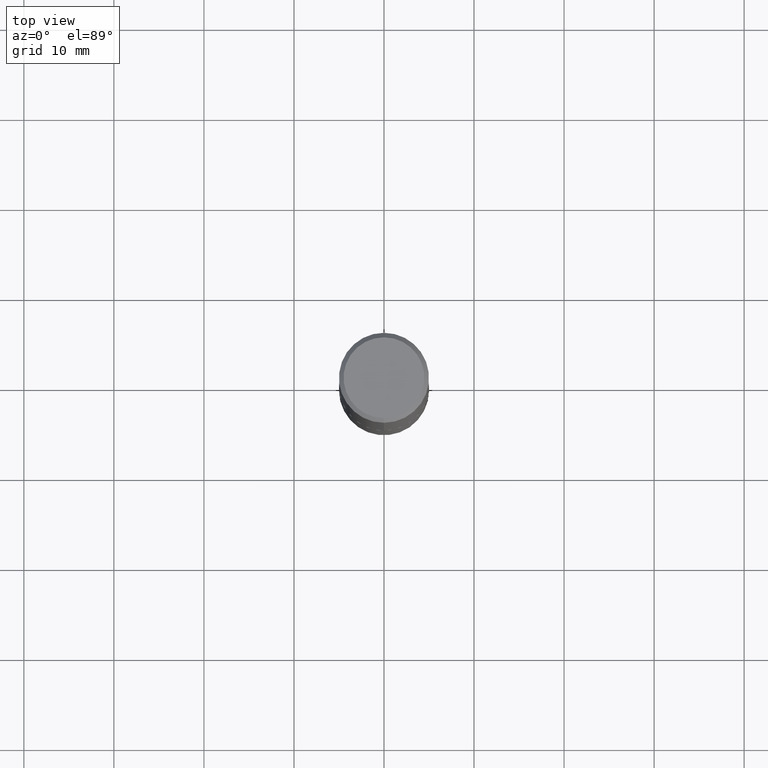
[diagram: clean part render]
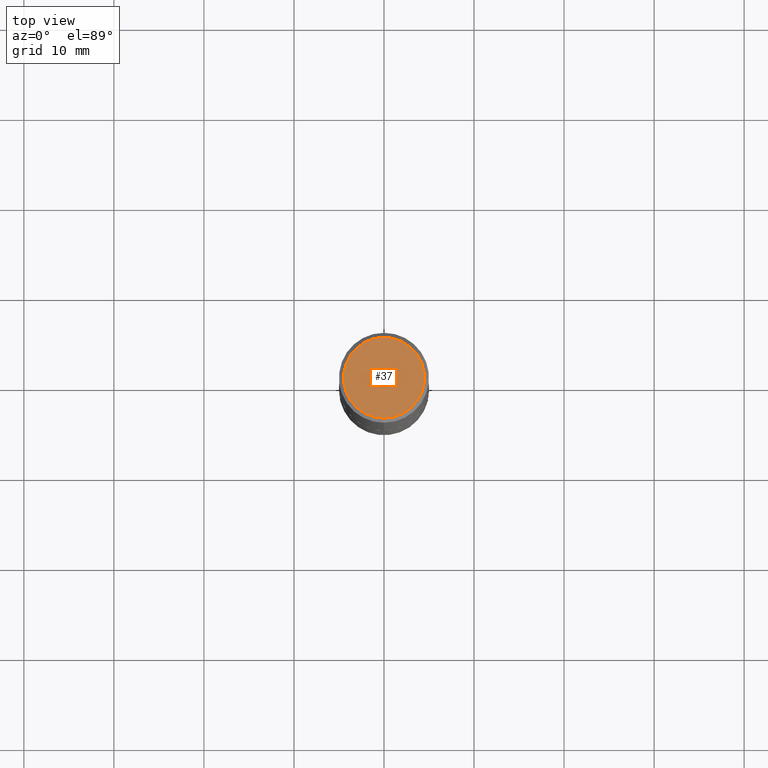
[diagram: same view with one face highlighted and labeled with its STEP entity id]
A machine part, top view. The second image highlights one B-rep face of the part: STEP entity #37.
In plain terms, the highlighted planar face has unit normal (0, -0, -1).
Its self-contained STEP definition (entity closure, byte-faithful):
#2 = CARTESIAN_POINT ( 'NONE',  ( 1.234936949548815012E-15, 0.1768499999999998407, -5.065124715121833152E-16 ) ) ;
#23 = DIRECTION ( 'NONE',  ( -2.445268841296851437E-29, 3.491767699944464545E-15, 1.000000000000000000 ) ) ;
#34 = ORIENTED_EDGE ( 'NONE', *, *, #346, .T. ) ;
#37 = ADVANCED_FACE ( 'NONE', ( #156 ), #57, .F. ) ;
#53 = ORIENTED_EDGE ( 'NONE', *, *, #390, .T. ) ;
#54 = DIRECTION ( 'NONE',  ( -2.445268841296851437E-29, 3.491767699944464545E-15, 1.000000000000000000 ) ) ;
#57 = PLANE ( 'NONE',  #267 ) ;
#65 = DIRECTION ( 'NONE',  ( 6.982962677686265922E-15, 1.000000000000000000, -3.491767699944464940E-15 ) ) ;
#117 = AXIS2_PLACEMENT_3D ( 'NONE', #302, #54, #365 ) ;
#147 = CARTESIAN_POINT ( 'NONE',  ( -1.281884050883609900E-15, -0.1768499999999998407, 8.395324101811677409E-16 ) ) ;
#156 = FACE_OUTER_BOUND ( 'NONE', #362, .T. ) ;
#188 = DIRECTION ( 'NONE',  ( 2.445268841296850876E-29, -3.491767699944464940E-15, -1.000000000000000000 ) ) ;
#250 = VERTEX_POINT ( 'NONE', #321 ) ;
#267 = AXIS2_PLACEMENT_3D ( 'NONE', #2, #188, #65 ) ;
#302 = CARTESIAN_POINT ( 'NONE',  ( -5.428821863719041386E-45, 7.752188435212310874E-31, 2.220132924459896583E-16 ) ) ;
#321 = CARTESIAN_POINT ( 'NONE',  ( 1.304766576325678705E-15, 0.1768499999999998407, -3.955058252891884244E-16 ) ) ;
#323 = AXIS2_PLACEMENT_3D ( 'NONE', #402, #23, #404 ) ;
#332 = CIRCLE ( 'NONE', #117, 0.1768499999999998407 ) ;
#344 = VERTEX_POINT ( 'NONE', #147 ) ;
#346 = EDGE_CURVE ( 'NONE', #250, #344, #360, .T. ) ;
#360 = CIRCLE ( 'NONE', #323, 0.1768499999999998407 ) ;
#362 = EDGE_LOOP ( 'NONE', ( #34, #53 ) ) ;
#365 = DIRECTION ( 'NONE',  ( -6.982962677686265922E-15, -1.000000000000000000, 3.491767699944464940E-15 ) ) ;
#390 = EDGE_CURVE ( 'NONE', #344, #250, #332, .T. ) ;
#402 = CARTESIAN_POINT ( 'NONE',  ( -5.428821863719041386E-45, 7.752188435212310874E-31, 2.220132924459896583E-16 ) ) ;
#404 = DIRECTION ( 'NONE',  ( -6.982962677686265922E-15, -1.000000000000000000, 3.491767699944464940E-15 ) ) ;